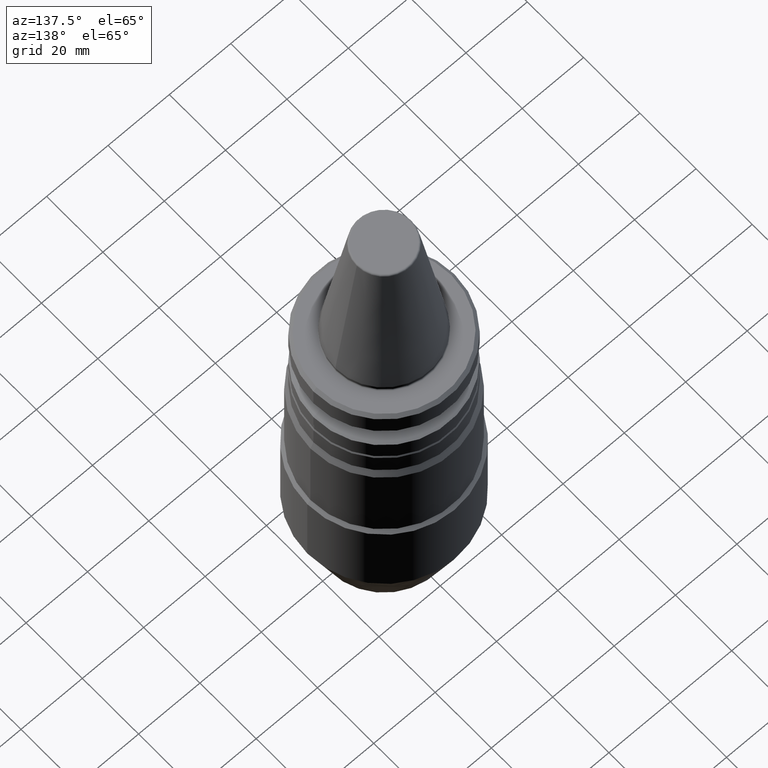
[diagram: clean part render]
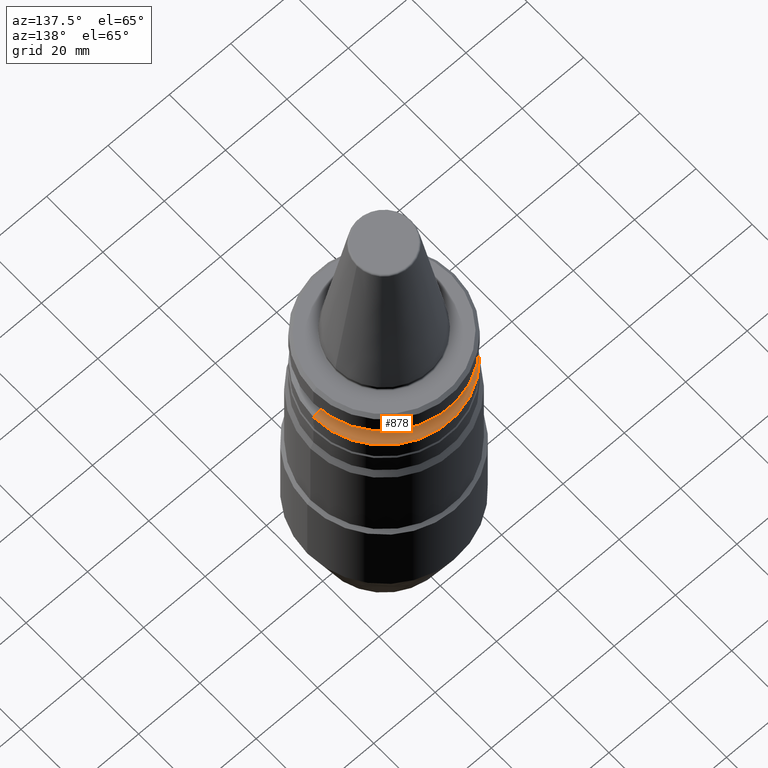
[diagram: same view with one face highlighted and labeled with its STEP entity id]
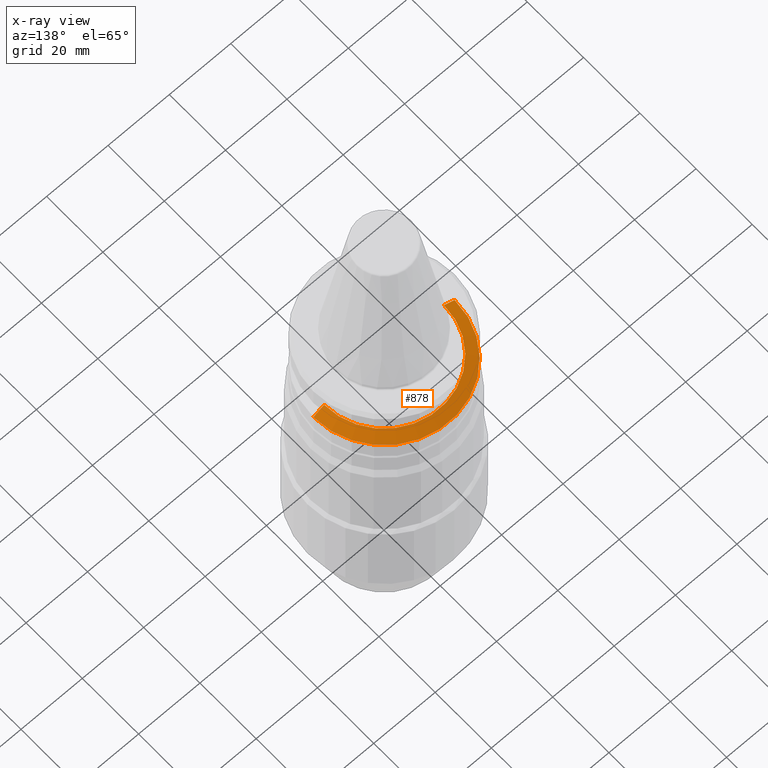
[diagram: x-ray of the same camera — body ghosted, the highlighted face saturated]
A machine part, auxiliary view. The second image highlights one B-rep face of the part: STEP entity #878.
The next image is the same camera in x-ray: the body ghosted, the highlighted face saturated — about 0% of this face is hidden behind the body in this view.
In plain terms, the highlighted conical surface has half-angle 60 deg.
Its self-contained STEP definition (entity closure, byte-faithful):
#27 = DIRECTION ( 'NONE',  ( 0.0000000000000000000, 0.0000000000000000000, -1.000000000000000000 ) ) ;
#34 = CARTESIAN_POINT ( 'NONE',  ( 23.00000000000013100, 0.0000000000000000000, -17.74988266494553800 ) ) ;
#62 = CARTESIAN_POINT ( 'NONE',  ( 0.0000000000000000000, 0.0000000000000000000, -17.74988266494553800 ) ) ;
#84 = CARTESIAN_POINT ( 'NONE',  ( 19.53610161513791300, 2.604585034559268600E-015, -15.74999999999981900 ) ) ;
#145 = CIRCLE ( 'NONE', #242, 23.00000000000013100 ) ;
#186 = CARTESIAN_POINT ( 'NONE',  ( -19.53610161513791300, 0.0000000000000000000, -15.74999999999981900 ) ) ;
#214 = VECTOR ( 'NONE', #266, 999.9999999999998900 ) ;
#218 = LINE ( 'NONE', #647, #214 ) ;
#240 = CIRCLE ( 'NONE', #526, 19.53610161513791300 ) ;
#242 = AXIS2_PLACEMENT_3D ( 'NONE', #62, #731, #629 ) ;
#266 = DIRECTION ( 'NONE',  ( -0.8660254037844380400, 0.0000000000000000000, -0.5000000000000012200 ) ) ;
#389 = ORIENTED_EDGE ( 'NONE', *, *, #1188, .T. ) ;
#398 = DIRECTION ( 'NONE',  ( 1.000000000000000000, 0.0000000000000000000, 0.0000000000000000000 ) ) ;
#417 = VERTEX_POINT ( 'NONE', #84 ) ;
#448 = CARTESIAN_POINT ( 'NONE',  ( 23.00000000000013100, 2.816687638038928500E-015, -17.74988266494553800 ) ) ;
#456 = EDGE_CURVE ( 'NONE', #417, #852, #240, .T. ) ;
#526 = AXIS2_PLACEMENT_3D ( 'NONE', #869, #806, #398 ) ;
#530 = VERTEX_POINT ( 'NONE', #34 ) ;
#537 = DIRECTION ( 'NONE',  ( 0.8660254037844380400, 1.060575238724906200E-016, -0.5000000000000012200 ) ) ;
#569 = DIRECTION ( 'NONE',  ( -1.000000000000000000, 0.0000000000000000000, 0.0000000000000000000 ) ) ;
#570 = EDGE_CURVE ( 'NONE', #852, #900, #218, .T. ) ;
#629 = DIRECTION ( 'NONE',  ( 1.000000000000000000, 0.0000000000000000000, 0.0000000000000000000 ) ) ;
#647 = CARTESIAN_POINT ( 'NONE',  ( -23.00000000000013100, 0.0000000000000000000, -17.74988266494553800 ) ) ;
#649 = AXIS2_PLACEMENT_3D ( 'NONE', #767, #27, #569 ) ;
#654 = EDGE_LOOP ( 'NONE', ( #1034, #389, #684, #974 ) ) ;
#684 = ORIENTED_EDGE ( 'NONE', *, *, #1203, .T. ) ;
#731 = DIRECTION ( 'NONE',  ( -0.0000000000000000000, -0.0000000000000000000, 1.000000000000000000 ) ) ;
#767 = CARTESIAN_POINT ( 'NONE',  ( 0.0000000000000000000, 0.0000000000000000000, -17.74988266494553800 ) ) ;
#801 = CARTESIAN_POINT ( 'NONE',  ( -23.00000000000013100, 2.816687638038928500E-015, -17.74988266494553800 ) ) ;
#806 = DIRECTION ( 'NONE',  ( -0.0000000000000000000, -0.0000000000000000000, 1.000000000000000000 ) ) ;
#852 = VERTEX_POINT ( 'NONE', #186 ) ;
#869 = CARTESIAN_POINT ( 'NONE',  ( 0.0000000000000000000, 0.0000000000000000000, -15.74999999999981900 ) ) ;
#878 = ADVANCED_FACE ( 'NONE', ( #1055 ), #1108, .T. ) ;
#900 = VERTEX_POINT ( 'NONE', #801 ) ;
#901 = VECTOR ( 'NONE', #537, 999.9999999999998900 ) ;
#974 = ORIENTED_EDGE ( 'NONE', *, *, #570, .F. ) ;
#1034 = ORIENTED_EDGE ( 'NONE', *, *, #456, .F. ) ;
#1055 = FACE_OUTER_BOUND ( 'NONE', #654, .T. ) ;
#1078 = LINE ( 'NONE', #448, #901 ) ;
#1108 = CONICAL_SURFACE ( 'NONE', #649, 23.00000000000013100, 1.047197551196596300 ) ;
#1188 = EDGE_CURVE ( 'NONE', #417, #530, #1078, .T. ) ;
#1203 = EDGE_CURVE ( 'NONE', #530, #900, #145, .T. ) ;